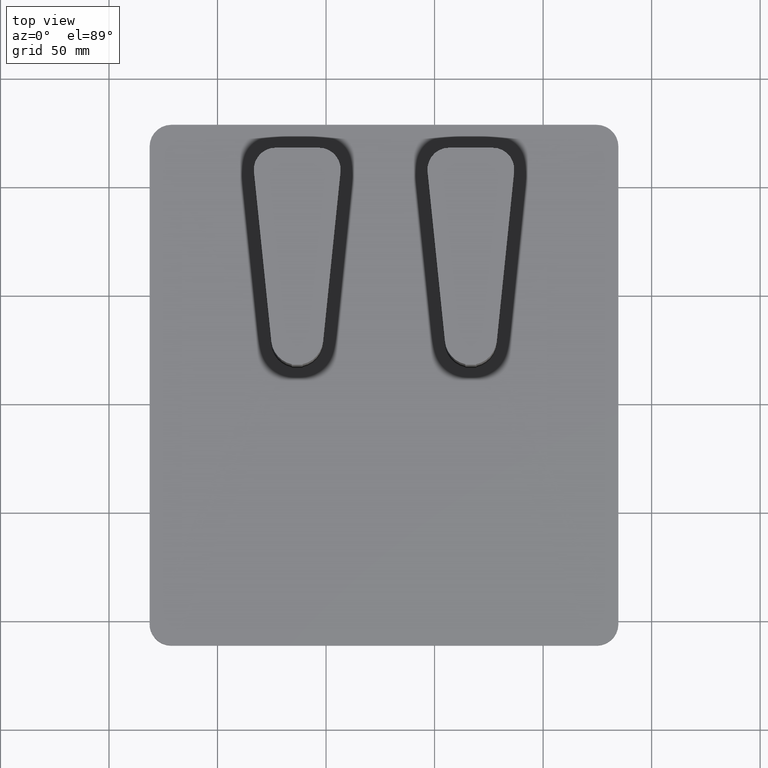
[diagram: clean part render]
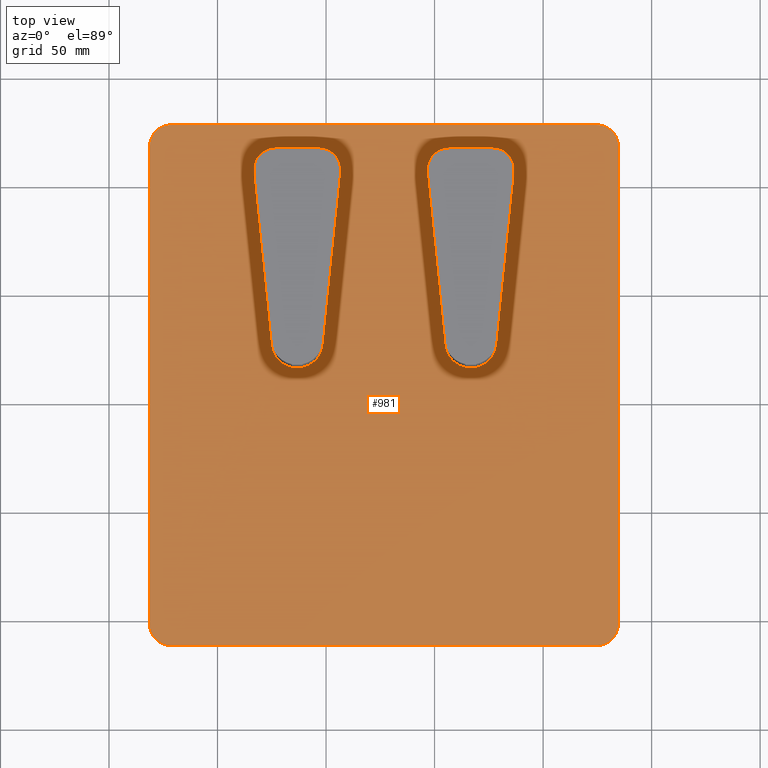
[diagram: same view with one face highlighted and labeled with its STEP entity id]
A machine part, top view. The second image highlights one B-rep face of the part: STEP entity #981.
In plain terms, the highlighted planar face has unit normal (0, 0, 1).
Its self-contained STEP definition (entity closure, byte-faithful):
#156=CARTESIAN_POINT('',(-160.80096754634269,116.90407944196107,15.000000000000002));
#157=VERTEX_POINT('',#156);
#164=CARTESIAN_POINT('',(-151.36342783703913,127.41801253507381,15.000000000000002));
#165=VERTEX_POINT('',#164);
#166=CARTESIAN_POINT('',(-163.30096754634269,128.64077403626658,15.000000000000002));
#167=DIRECTION('',(0.0,0.0,-1.0));
#168=DIRECTION('',(0.994794975775302,0.101896791766063,0.0));
#169=AXIS2_PLACEMENT_3D('',#166,#167,#168);
#170=CIRCLE('',#169,12.000000000000002);
#171=EDGE_CURVE('',#165,#157,#170,.T.);
#198=CARTESIAN_POINT('',(-80.800967546342662,116.90407944196109,15.000000000000002));
#199=VERTEX_POINT('',#198);
#206=CARTESIAN_POINT('',(-71.363427837039026,127.41801253507381,15.000000000000002));
#207=VERTEX_POINT('',#206);
#208=CARTESIAN_POINT('',(-83.300967546342633,128.64077403626658,15.000000000000002));
#209=DIRECTION('',(0.0,0.0,-1.0));
#210=DIRECTION('',(-0.994794975775302,0.101896791766063,0.0));
#211=AXIS2_PLACEMENT_3D('',#208,#209,#210);
#212=CIRCLE('',#211,12.000000000000002);
#213=EDGE_CURVE('',#207,#199,#212,.T.);
#238=CARTESIAN_POINT('',(-165.80096754634269,116.64077403626656,15.000000000000002));
#239=VERTEX_POINT('',#238);
#248=CARTESIAN_POINT('',(-160.80096754634269,116.64077403626656,15.000000000000002));
#249=VERTEX_POINT('',#248);
#250=CARTESIAN_POINT('',(-165.80096754634269,116.64077403626656,15.000000000000002));
#251=DIRECTION('',(1.0,0.0,0.0));
#252=VECTOR('',#251,5.0);
#253=LINE('',#250,#252);
#254=EDGE_CURVE('',#239,#249,#253,.T.);
#280=CARTESIAN_POINT('',(-80.800967546342662,116.64077403626656,15.000000000000002));
#281=VERTEX_POINT('',#280);
#296=CARTESIAN_POINT('',(-85.800967546342633,116.64077403626656,15.000000000000002));
#297=VERTEX_POINT('',#296);
#304=CARTESIAN_POINT('',(-85.800967546342633,116.64077403626656,15.000000000000002));
#305=DIRECTION('',(1.0,0.0,0.0));
#306=VECTOR('',#305,4.999999999999986);
#307=LINE('',#304,#306);
#308=EDGE_CURVE('',#297,#281,#307,.T.);
#318=CARTESIAN_POINT('',(-85.800967546342662,116.90407944196109,15.000000000000002));
#319=VERTEX_POINT('',#318);
#337=CARTESIAN_POINT('',(-95.238507255646283,127.41801253507381,15.000000000000002));
#338=VERTEX_POINT('',#337);
#345=CARTESIAN_POINT('',(-83.300967546342633,128.64077403626658,15.000000000000002));
#346=DIRECTION('',(0.0,0.0,-1.0));
#347=DIRECTION('',(-0.994794975775302,0.101896791766063,0.0));
#348=AXIS2_PLACEMENT_3D('',#345,#346,#347);
#349=CIRCLE('',#348,12.000000000000002);
#350=EDGE_CURVE('',#319,#338,#349,.T.);
#361=CARTESIAN_POINT('',(-160.80096754634269,116.90407944196107,15.000000000000002));
#362=DIRECTION('',(0.0,-1.0,0.0));
#363=VECTOR('',#362,0.263305405694496);
#364=LINE('',#361,#363);
#365=EDGE_CURVE('',#157,#249,#364,.T.);
#787=CARTESIAN_POINT('',(-123.30096754634269,108.64077403626649,15.000000000000002));
#788=DIRECTION('',(0.0,0.0,1.0));
#789=DIRECTION('',(1.0,0.0,0.0));
#790=AXIS2_PLACEMENT_3D('',#787,#788,#789);
#791=PLANE('',#790);
#792=CARTESIAN_POINT('',(-15.30096754634269,218.64077403626646,15.000000000000002));
#793=VERTEX_POINT('',#792);
#794=CARTESIAN_POINT('',(-15.300967546342672,-1.35922596373348,15.000000000000002));
#795=VERTEX_POINT('',#794);
#796=CARTESIAN_POINT('',(-15.30096754634269,218.64077403626646,15.000000000000002));
#797=DIRECTION('',(0.0,-1.0,0.0));
#798=VECTOR('',#797,219.99999999999994);
#799=LINE('',#796,#798);
#800=EDGE_CURVE('',#793,#795,#799,.T.);
#801=ORIENTED_EDGE('',*,*,#800,.F.);
#802=CARTESIAN_POINT('',(-25.300967546342697,228.64077403626658,15.000000000000002));
#803=VERTEX_POINT('',#802);
#804=CARTESIAN_POINT('',(-25.300967546342697,218.64077403626646,15.000000000000002));
#805=DIRECTION('',(0.0,0.0,-1.0));
#806=DIRECTION('',(0.707106781186549,0.707106781186546,0.0));
#807=AXIS2_PLACEMENT_3D('',#804,#805,#806);
#808=CIRCLE('',#807,10.000000000000002);
#809=EDGE_CURVE('',#803,#793,#808,.T.);
#810=ORIENTED_EDGE('',*,*,#809,.F.);
#811=CARTESIAN_POINT('',(-221.30096754634275,228.64077403626658,15.000000000000002));
#812=VERTEX_POINT('',#811);
#813=CARTESIAN_POINT('',(-221.30096754634275,228.64077403626658,15.000000000000002));
#814=DIRECTION('',(1.0,0.0,0.0));
#815=VECTOR('',#814,196.00000000000003);
#816=LINE('',#813,#815);
#817=EDGE_CURVE('',#812,#803,#816,.T.);
#818=ORIENTED_EDGE('',*,*,#817,.F.);
#819=CARTESIAN_POINT('',(-231.30096754634275,218.64077403626646,15.000000000000002));
#820=VERTEX_POINT('',#819);
#821=CARTESIAN_POINT('',(-221.30096754634275,218.64077403626646,15.000000000000002));
#822=DIRECTION('',(0.0,0.0,-1.0));
#823=DIRECTION('',(-0.707106781186547,0.707106781186547,0.0));
#824=AXIS2_PLACEMENT_3D('',#821,#822,#823);
#825=CIRCLE('',#824,10.000000000000002);
#826=EDGE_CURVE('',#820,#812,#825,.T.);
#827=ORIENTED_EDGE('',*,*,#826,.F.);
#828=CARTESIAN_POINT('',(-231.30096754634263,-1.35922596373351,15.000000000000002));
#829=VERTEX_POINT('',#828);
#830=CARTESIAN_POINT('',(-231.30096754634263,-1.35922596373351,15.000000000000002));
#831=DIRECTION('',(0.0,1.0,0.0));
#832=VECTOR('',#831,219.99999999999997);
#833=LINE('',#830,#832);
#834=EDGE_CURVE('',#829,#820,#833,.T.);
#835=ORIENTED_EDGE('',*,*,#834,.F.);
#836=CARTESIAN_POINT('',(-221.30096754634266,-11.359225963733511,15.000000000000002));
#837=VERTEX_POINT('',#836);
#838=CARTESIAN_POINT('',(-221.30096754634266,-1.35922596373351,15.000000000000002));
#839=DIRECTION('',(0.0,0.0,-1.0));
#840=DIRECTION('',(-0.707106781186549,-0.707106781186546,0.0));
#841=AXIS2_PLACEMENT_3D('',#838,#839,#840);
#842=CIRCLE('',#841,10.000000000000002);
#843=EDGE_CURVE('',#837,#829,#842,.T.);
#844=ORIENTED_EDGE('',*,*,#843,.F.);
#845=CARTESIAN_POINT('',(-25.300967546342676,-11.35922596373349,15.000000000000002));
#846=VERTEX_POINT('',#845);
#847=CARTESIAN_POINT('',(-25.300967546342676,-11.35922596373349,15.000000000000002));
#848=DIRECTION('',(-1.0,0.0,0.0));
#849=VECTOR('',#848,195.99999999999994);
#850=LINE('',#847,#849);
#851=EDGE_CURVE('',#846,#837,#850,.T.);
#852=ORIENTED_EDGE('',*,*,#851,.F.);
#853=CARTESIAN_POINT('',(-25.300967546342676,-1.35922596373348,15.000000000000002));
#854=DIRECTION('',(0.0,0.0,-1.0));
#855=DIRECTION('',(0.707106781186547,-0.707106781186548,0.0));
#856=AXIS2_PLACEMENT_3D('',#853,#854,#855);
#857=CIRCLE('',#856,10.0);
#858=EDGE_CURVE('',#795,#846,#857,.T.);
#859=ORIENTED_EDGE('',*,*,#858,.F.);
#860=EDGE_LOOP('',(#801,#810,#818,#827,#835,#844,#852,#859));
#861=FACE_OUTER_BOUND('',#860,.T.);
#862=CARTESIAN_POINT('',(-173.30096754634269,216.64077403626658,15.000000000000002));
#863=VERTEX_POINT('',#862);
#864=CARTESIAN_POINT('',(-153.30096754634272,216.64077403626658,15.000000000000002));
#865=VERTEX_POINT('',#864);
#866=CARTESIAN_POINT('',(-173.30096754634269,216.64077403626658,15.000000000000002));
#867=DIRECTION('',(1.0,0.0,0.0));
#868=VECTOR('',#867,20.0);
#869=LINE('',#866,#868);
#870=EDGE_CURVE('',#863,#865,#869,.T.);
#871=ORIENTED_EDGE('',*,*,#870,.T.);
#872=CARTESIAN_POINT('',(-143.35301778858974,205.621806118606,15.000000000000002));
#873=VERTEX_POINT('',#872);
#874=CARTESIAN_POINT('',(-153.30096754634272,206.64077403626658,15.000000000000002));
#875=DIRECTION('',(0.0,0.0,-1.0));
#876=DIRECTION('',(-0.994794975775302,0.101896791766061,0.0));
#877=AXIS2_PLACEMENT_3D('',#874,#875,#876);
#878=CIRCLE('',#877,10.0);
#879=EDGE_CURVE('',#865,#873,#878,.T.);
#880=ORIENTED_EDGE('',*,*,#879,.T.);
#881=CARTESIAN_POINT('',(-143.35301778858974,205.621806118606,15.000000000000002));
#882=DIRECTION('',(-0.101896791766064,-0.994794975775302,0.0));
#883=VECTOR('',#882,78.612976028134256);
#884=LINE('',#881,#883);
#885=EDGE_CURVE('',#873,#165,#884,.T.);
#886=ORIENTED_EDGE('',*,*,#885,.T.);
#887=ORIENTED_EDGE('',*,*,#171,.T.);
#888=ORIENTED_EDGE('',*,*,#365,.T.);
#889=ORIENTED_EDGE('',*,*,#254,.F.);
#890=CARTESIAN_POINT('',(-165.80096754634269,116.90407944196107,15.000000000000002));
#891=VERTEX_POINT('',#890);
#892=CARTESIAN_POINT('',(-165.80096754634269,116.64077403626656,15.000000000000002));
#893=DIRECTION('',(0.0,1.0,0.0));
#894=VECTOR('',#893,0.26330540569451);
#895=LINE('',#892,#894);
#896=EDGE_CURVE('',#239,#891,#895,.T.);
#897=ORIENTED_EDGE('',*,*,#896,.T.);
#898=CARTESIAN_POINT('',(-175.23850725564637,127.41801253507381,15.000000000000002));
#899=VERTEX_POINT('',#898);
#900=CARTESIAN_POINT('',(-163.30096754634269,128.64077403626658,15.000000000000002));
#901=DIRECTION('',(0.0,0.0,-1.0));
#902=DIRECTION('',(0.994794975775302,0.101896791766063,0.0));
#903=AXIS2_PLACEMENT_3D('',#900,#901,#902);
#904=CIRCLE('',#903,12.000000000000002);
#905=EDGE_CURVE('',#891,#899,#904,.T.);
#906=ORIENTED_EDGE('',*,*,#905,.T.);
#907=CARTESIAN_POINT('',(-183.2489173040957,205.621806118606,15.000000000000002));
#908=VERTEX_POINT('',#907);
#909=CARTESIAN_POINT('',(-175.23850725564637,127.41801253507381,15.000000000000002));
#910=DIRECTION('',(-0.101896791766064,0.994794975775302,0.0));
#911=VECTOR('',#910,78.612976028134241);
#912=LINE('',#909,#911);
#913=EDGE_CURVE('',#899,#908,#912,.T.);
#914=ORIENTED_EDGE('',*,*,#913,.T.);
#915=CARTESIAN_POINT('',(-173.30096754634269,206.64077403626663,15.000000000000002));
#916=DIRECTION('',(0.0,0.0,-1.0));
#917=DIRECTION('',(0.0,-1.0,0.0));
#918=AXIS2_PLACEMENT_3D('',#915,#916,#917);
#919=CIRCLE('',#918,10.0);
#920=EDGE_CURVE('',#908,#863,#919,.T.);
#921=ORIENTED_EDGE('',*,*,#920,.T.);
#922=EDGE_LOOP('',(#871,#880,#886,#887,#888,#889,#897,#906,#914,#921));
#923=FACE_BOUND('',#922,.T.);
#924=CARTESIAN_POINT('',(-93.30096754634269,216.64077403626658,15.000000000000002));
#925=VERTEX_POINT('',#924);
#926=CARTESIAN_POINT('',(-73.300967546342704,216.64077403626658,15.000000000000002));
#927=VERTEX_POINT('',#926);
#928=CARTESIAN_POINT('',(-93.30096754634269,216.64077403626658,15.000000000000002));
#929=DIRECTION('',(1.0,0.0,0.0));
#930=VECTOR('',#929,19.999999999999986);
#931=LINE('',#928,#930);
#932=EDGE_CURVE('',#925,#927,#931,.T.);
#933=ORIENTED_EDGE('',*,*,#932,.T.);
#934=CARTESIAN_POINT('',(-63.353017788589661,205.621806118606,15.000000000000002));
#935=VERTEX_POINT('',#934);
#936=CARTESIAN_POINT('',(-73.300967546342662,206.64077403626663,15.000000000000002));
#937=DIRECTION('',(0.0,0.0,-1.0));
#938=DIRECTION('',(0.0,-1.0,0.0));
#939=AXIS2_PLACEMENT_3D('',#936,#937,#938);
#940=CIRCLE('',#939,10.0);
#941=EDGE_CURVE('',#927,#935,#940,.T.);
#942=ORIENTED_EDGE('',*,*,#941,.T.);
#943=CARTESIAN_POINT('',(-63.353017788589661,205.621806118606,15.000000000000002));
#944=DIRECTION('',(-0.101896791766064,-0.994794975775302,0.0));
#945=VECTOR('',#944,78.612976028134256);
#946=LINE('',#943,#945);
#947=EDGE_CURVE('',#935,#207,#946,.T.);
#948=ORIENTED_EDGE('',*,*,#947,.T.);
#949=ORIENTED_EDGE('',*,*,#213,.T.);
#950=CARTESIAN_POINT('',(-80.800967546342662,116.90407944196109,15.000000000000002));
#951=DIRECTION('',(0.0,-1.0,0.0));
#952=VECTOR('',#951,0.263305405694524);
#953=LINE('',#950,#952);
#954=EDGE_CURVE('',#199,#281,#953,.T.);
#955=ORIENTED_EDGE('',*,*,#954,.T.);
#956=ORIENTED_EDGE('',*,*,#308,.F.);
#957=CARTESIAN_POINT('',(-85.800967546342633,116.64077403626656,15.000000000000002));
#958=DIRECTION('',(0.0,1.0,0.0));
#959=VECTOR('',#958,0.263305405694524);
#960=LINE('',#957,#959);
#961=EDGE_CURVE('',#297,#319,#960,.T.);
#962=ORIENTED_EDGE('',*,*,#961,.T.);
#963=ORIENTED_EDGE('',*,*,#350,.T.);
#964=CARTESIAN_POINT('',(-103.24891730409567,205.621806118606,15.000000000000002));
#965=VERTEX_POINT('',#964);
#966=CARTESIAN_POINT('',(-95.238507255646226,127.41801253507381,15.000000000000002));
#967=DIRECTION('',(-0.101896791766064,0.994794975775302,0.0));
#968=VECTOR('',#967,78.61297602813427);
#969=LINE('',#966,#968);
#970=EDGE_CURVE('',#338,#965,#969,.T.);
#971=ORIENTED_EDGE('',*,*,#970,.T.);
#972=CARTESIAN_POINT('',(-93.30096754634269,206.64077403626658,15.000000000000002));
#973=DIRECTION('',(0.0,0.0,-1.0));
#974=DIRECTION('',(0.994794975775302,0.101896791766061,0.0));
#975=AXIS2_PLACEMENT_3D('',#972,#973,#974);
#976=CIRCLE('',#975,10.0);
#977=EDGE_CURVE('',#965,#925,#976,.T.);
#978=ORIENTED_EDGE('',*,*,#977,.T.);
#979=EDGE_LOOP('',(#933,#942,#948,#949,#955,#956,#962,#963,#971,#978));
#980=FACE_BOUND('',#979,.T.);
#981=ADVANCED_FACE('',(#861,#923,#980),#791,.T.);